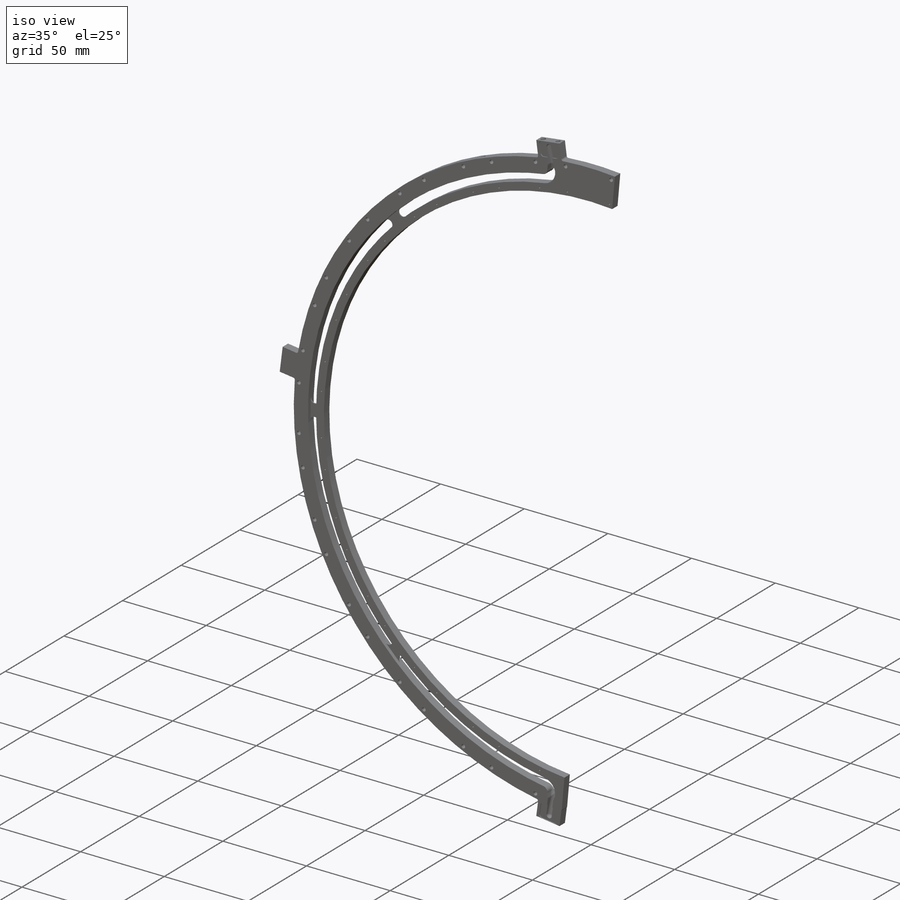
[diagram: iso view]
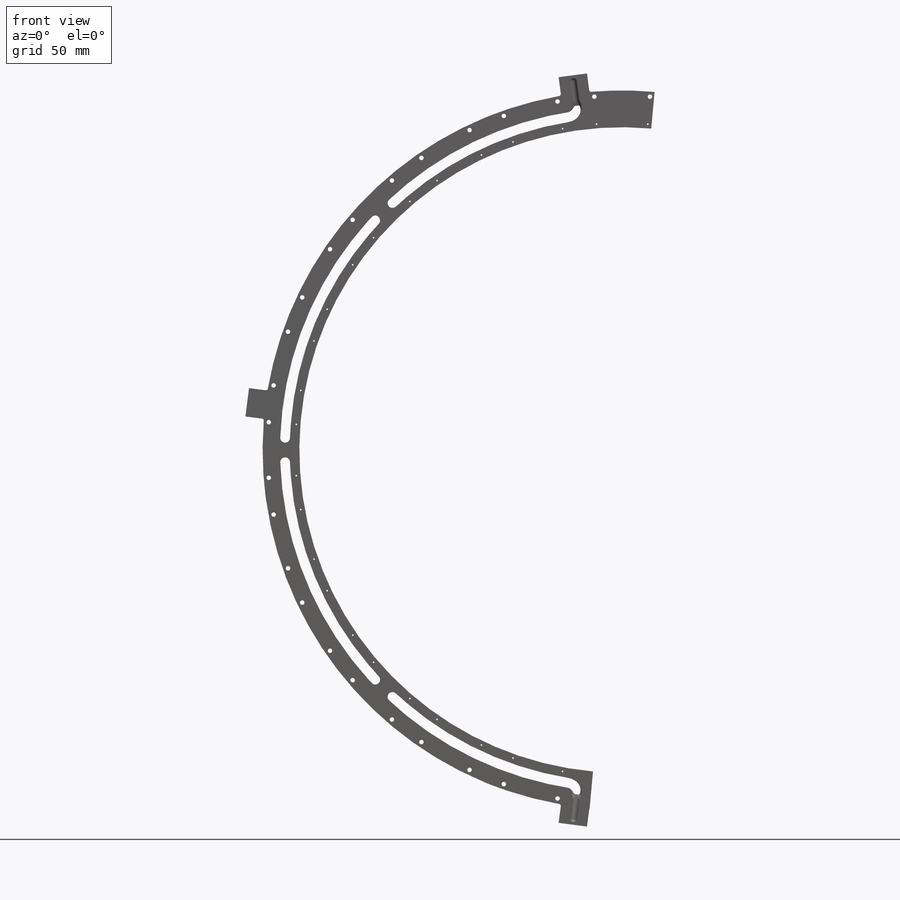
[diagram: front view]
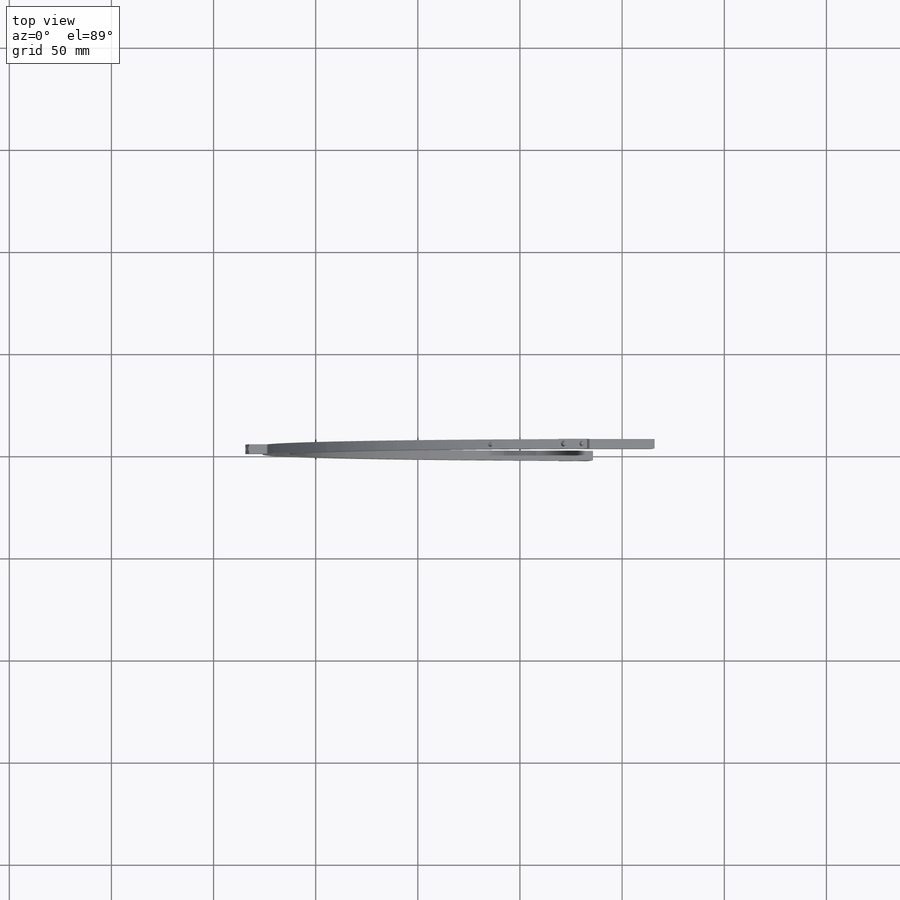
[diagram: top view]
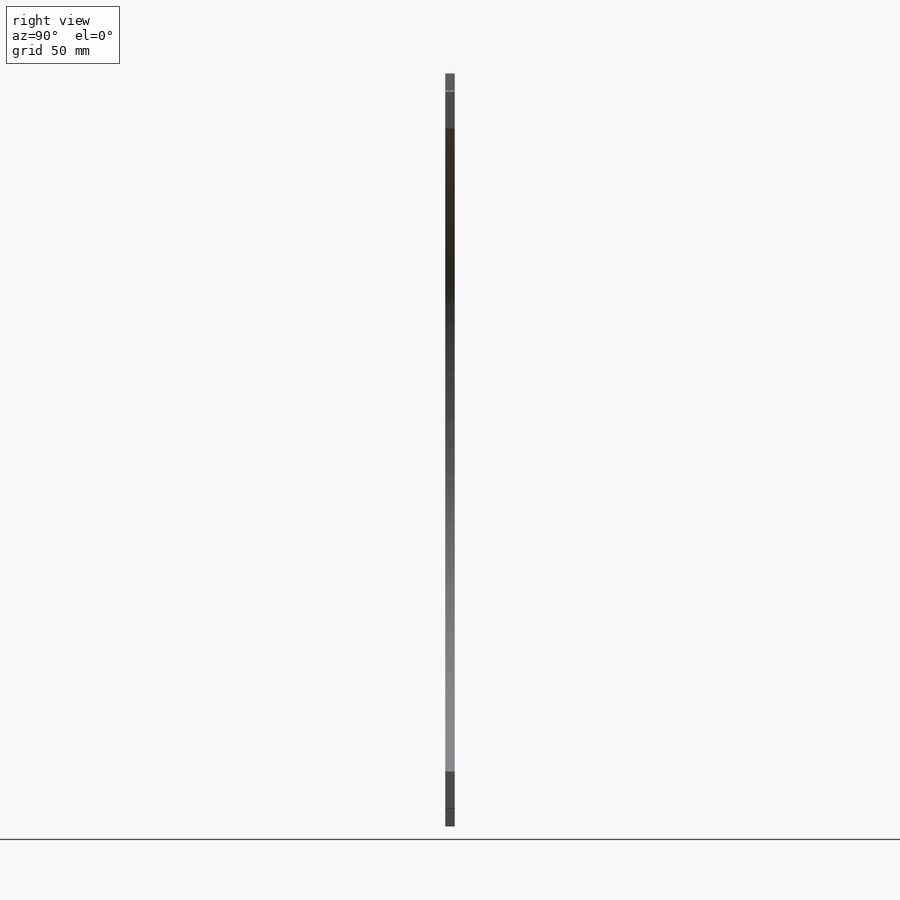
[diagram: right view]
SOLIDWORKS PART (.sldprt)
format: sldprt  version: not decoded by parser v0  size: 1,070,592 bytes
history: native  units: mm
features: sketch x25, hole x8, plane x7, fillet x6, extrude x4, cut_extrude x4, pattern_circular x4, material x1, mirror x1 + 2 further entries (+13 scaffold rows collapsed)
feature tree (75):
  scaffold x13  (default folders/planes/origin — collapsed)
  material  "Material <not specified>"
  plane  "Plane1"
  plane  "Plane2"
  plane  "Plane3"
  "Axis2"
  "Axis3"
  sketch  "Sketch1"  dims[c1.D1=~167.454764mm c1.D2=173.0mm c1.D5=185.5mm c1.D6=1.0mm c1.D7=3.5mm c1.D8=4.7625mm c1.D9=4.7625mm c1.D10=4.7625mm c1.D12=4.7625mm c1.D13=4.7625mm c1.D14=3.5mm c1.D15=4.7625mm c1.D17=185.5mm c1.D18=2.1844mm c1.D19=2.1844mm c1.D21=176.0mm c1.D22=~162.692264mm c1.D23=158.0mm c1.D25=~2.61875mm c1.D26=~7.38125mm c2.D8=~2.38125mm c2.D3=~206.343466mm c3.D3=7.25deg c3.D4=14.0mm c3.D9=176.0mm c3.D10=182.0mm c3.D11=~231.413519mm c4.D11=8.75deg c4.D12=176.0mm c4.D13=182.0mm c4.D16=7.5mm c4.D17=7.75mm c5.D17=3.5deg c5.D18=~169.449665mm c5.D20=~231.413519mm c6.D20=11.25deg c6.D24=~11.536081mm c7.D24=5.5deg c7.D27=~181.375931mm c8.D27=7.5deg c8.D28=4.7625mm c8.D29=182.375mm c8.D30=4.625mm c9.D30=90.0deg c10.D30=7.75mm c10.D31=7.75mm c10.D32=~231.413519mm c11.D32=~5.178469deg c11.D5=185.0mm c11.D17=185.0mm c11.D24=110.0mm c12.D24=~5.178469deg c12.D29=182.0mm c12.D11=7.0mm c12.D6=7.0mm c12.D7=185.0mm c13.D7=7.5deg c13.D8=6.5mm c13.D1=0.0mm]
  extrude  "Extrude1"  Depth=4.6125mm
  sketch  "Sketch2"  dims[c1.D2=2.1844mm c1.D1=3.5mm c1.D7=~0.79375mm c1.D9=2.1844mm c1.D10=2.1844mm c1.D12=3.0mm c2.D1=~5.23875mm c3.D1=3.75deg c3.D3=173.5mm c4.D1=18.0mm c4.D4=~5.23875mm c5.D4=11.25deg c5.D1=~26.223025mm c6.D1=0.75deg c6.D5=~22.260154mm c7.D5=8.25deg c7.D6=160.0mm c7.D8=~4.436651mm c8.D8=~1.356939deg c8.D9=~2.054457mm c8.D10=~2.487661mm c8.D11=~4.750899mm c9.D11=~1.356939deg]
  cut_extrude  "Cut-Extrude1"  [1 undecoded]
  pattern_circular  "CirPattern1"  Count=12 Angle=15deg
  plane  "Plane4"
  plane  "Plane5"  Offset=176mm
  hole  "Ø2.5 (2.5) Diameter Hole1"  Diameter=2.5mm Depth=5mm
  sketch  "Sketch12"
  sketch  "Sketch11"  dims[hole-wizard template sketch: 50 standard entries collapsed; hole parameters above]
  pattern_circular  "CirPattern2"  Count=2 Angle=137deg
  hole  "Ø2.5 (2.5) Diameter Hole2"  Diameter=2.5mm Depth=7mm
  sketch  "Sketch14"  dims[D1=4.5mm]
  sketch  "Sketch13"  dims[hole-wizard template sketch: 50 standard entries collapsed; hole parameters above]
  hole  "Ø2.5 (2.5) Diameter Hole3"  Diameter=2.5mm Depth=7mm
  sketch  "Sketch16"  dims[D1=4.5mm]
  sketch  "Sketch15"  dims[hole-wizard template sketch: 50 standard entries collapsed; hole parameters above]
  hole  "Ø2.5 (2.5) Diameter Hole4"  Diameter=2.5mm Depth=7mm
  sketch  "Sketch18"  dims[D1=4.5mm]
  sketch  "Sketch17"  dims[hole-wizard template sketch: 50 standard entries collapsed; hole parameters above]
  hole  "#4-40 Tapped Hole1"  Diameter=2.2606mm Depth=10mm
  sketch  "Sketch20"  dims[D1=4.5mm]
  sketch  "Sketch19"  dims[hole-wizard template sketch: 29 standard entries collapsed; hole parameters kept: c8.Tap Drill Depth=10.0mm c8.Thread Major Dia.=2.8448mm c8.Thread Depth=9.0mm c8.D5=~14.816244mm c8.Drill Angle=118.0deg]
  hole  "#4-40 Tapped Hole2"  Diameter=2.2606mm Depth=10mm
  sketch  "Sketch22"  dims[D1=4.5mm]
  sketch  "Sketch21"  dims[hole-wizard template sketch: 29 standard entries collapsed; hole parameters kept: c8.Tap Drill Depth=10.0mm c8.Thread Major Dia.=2.8448mm c8.Thread Depth=9.0mm c8.D5=~14.816244mm c8.Drill Angle=118.0deg]
  hole  "#4-40 Tapped Hole3"  Diameter=2.2606mm Depth=10mm
  sketch  "Sketch24"  dims[D1=4.5mm]
  sketch  "Sketch23"  dims[hole-wizard template sketch: 29 standard entries collapsed; hole parameters kept: c8.Tap Drill Depth=10.0mm c8.Thread Major Dia.=2.8448mm c8.Thread Depth=9.0mm c8.D5=~14.816244mm c8.Drill Angle=118.0deg]
  fillet  "Fillet1"  Radius=1mm
  sketch  "Sketch39"  dims[D1=~0.79375mm]
  extrude  "Boss-Extrude7"  [1 undecoded]
  sketch  "Sketch25"  dims[c1.D1=5.75mm c1.D4=5.75mm c1.D5=5.75mm c1.D2=~161.68953mm c2.D2=7.5deg c2.D3=~161.68953mm c3.D3=7.5deg c3.D4=3.0mm c3.D5=3.0mm]
  cut_extrude  "Cut-Extrude2"  Depth=0.5mm
  plane  "Plane6"
  sketch  "Sketch40"  dims[c1.D1=3.175mm c1.D2=~0.542957mm c1.D3=15.0mm c2.D3=~9.280983deg]
  extrude  "Boss-Extrude8"  Depth=3.81mm
  fillet  "Fillet7"  Radius=1.5875mm
  sketch  "Sketch41"
  cut_extrude  "Cut-Extrude4"  Depth=12mm
  fillet  "Fillet11"  Radius=1.5875mm
  fillet  "Fillet15"  Radius=1.5875mm
  pattern_circular  "CirPattern4"  Count=2 Angle=165deg
  fillet  "Fillet16"  Radius=1.5875mm
  fillet  "Fillet17"  Radius=1.5875mm
  sketch  "Sketch34"  dims[c1.D1=~5.07375mm c2.D1=82.5deg c2.D2=176.0mm]
  plane  "Plane10"
  hole  "Ø2.5 (2.5) Diameter Hole5"  Diameter=2.5mm Depth=5mm
  sketch  "Sketch36"
  sketch  "Sketch35"  dims[hole-wizard template sketch: 50 standard entries collapsed; hole parameters above]
  sketch  "Sketch37"  dims[c1.D2=~2.38125mm c1.D1=~220.735855mm c2.D1=45.0deg c2.D2=4.7625mm c3.D2=2.5deg c3.D3=160.0mm c3.D4=10.0mm]
  extrude  "Boss-Extrude5"  Depth=0.5mm
  pattern_circular  "CirPattern3"  Count=3 Angle=45deg
  sketch  "Sketch42"  dims[c1.D3=4.7244mm c1.D4=4.7244mm c1.D1=4.7244mm c1.D2=1.5875mm c2.D1=7.0mm c2.D2=10.7244mm c2.D4=3.0mm c3.D1=3.0mm c3.D5=2.875mm]
  cut_extrude  "Cut-Extrude5"  [1 undecoded]
  mirror  "Mirror1"
decode coverage: 45 of 52 modeling features carry decoded parameters; 2 rows unclassified (native names shown)
note: ~ marks probable driven/reference dimensions
note: 3 parameter values undecoded
summary: Diameter pulled from absorbed wizard sketch | no parameter record found for 3 features
note: suppression state not decoded; provenance and decode notes live in map.json
